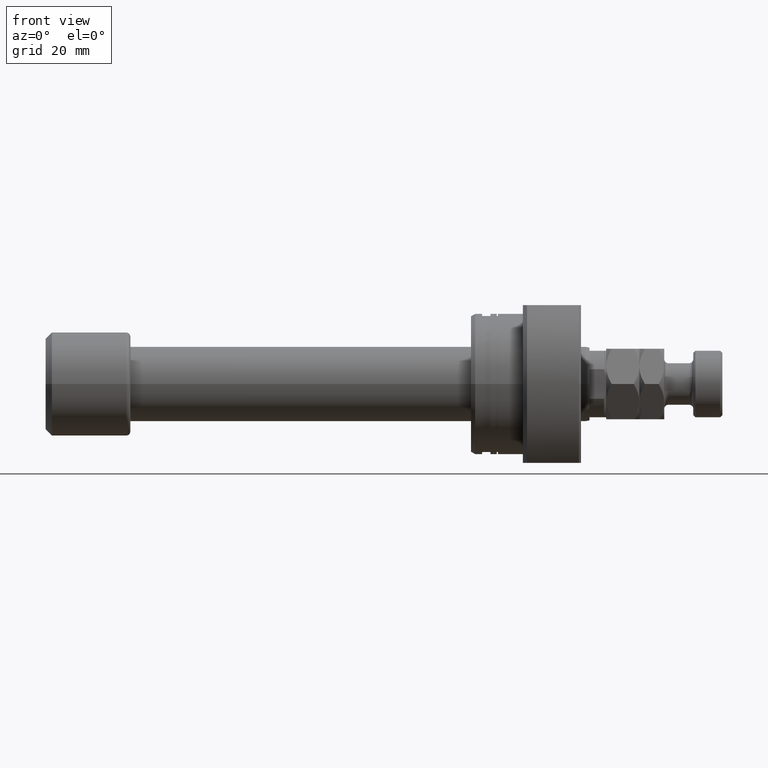
[diagram: clean part render]
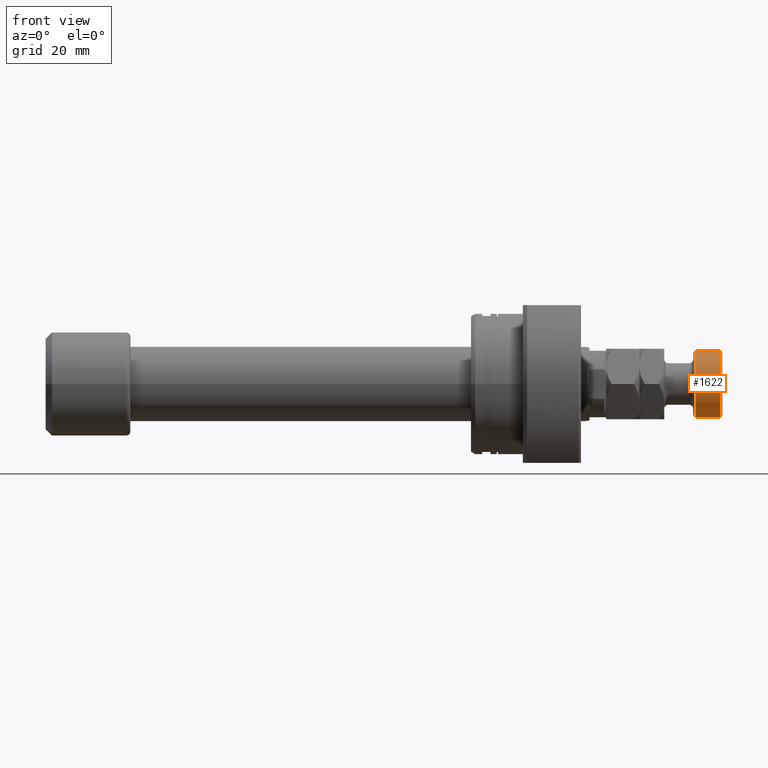
[diagram: same view with one face highlighted and labeled with its STEP entity id]
A machine part, front view. The second image highlights one B-rep face of the part: STEP entity #1622.
In plain terms, the highlighted cylindrical surface (edge-blend (fillet) strip) has radius 8 mm, axis along (-1, -0, 0).
Its self-contained STEP definition (entity closure, byte-faithful):
#122 = VECTOR ( 'NONE', #2805, 1000.000000000000000 ) ;
#160 = CARTESIAN_POINT ( 'NONE',  ( 8.000000000000000000, 9.797174393178825657E-16, 28.00000000000000000 ) ) ;
#174 = CARTESIAN_POINT ( 'NONE',  ( 0.000000000000000000, 0.000000000000000000, 27.50000000000000000 ) ) ;
#206 = LINE ( 'NONE', #160, #122 ) ;
#346 = CARTESIAN_POINT ( 'NONE',  ( 0.000000000000000000, 0.000000000000000000, 28.00000000000000000 ) ) ;
#460 = ORIENTED_EDGE ( 'NONE', *, *, #2314, .F. ) ;
#911 = DIRECTION ( 'NONE',  ( 0.000000000000000000, 0.000000000000000000, -1.000000000000000000 ) ) ;
#1003 = LINE ( 'NONE', #2811, #4559 ) ;
#1132 = CARTESIAN_POINT ( 'NONE',  ( 8.000000000000000000, 9.797174393178825657E-16, 27.50000000000000000 ) ) ;
#1622 = ADVANCED_FACE ( 'NONE', ( #2211 ), #4056, .T. ) ;
#1850 = EDGE_CURVE ( 'NONE', #2722, #4563, #1003, .T. ) ;
#2211 = FACE_OUTER_BOUND ( 'NONE', #3636, .T. ) ;
#2247 = CARTESIAN_POINT ( 'NONE',  ( 8.000000000000000000, 9.797174393178825657E-16, 21.50000000000000711 ) ) ;
#2312 = DIRECTION ( 'NONE',  ( -1.000000000000000000, 0.000000000000000000, 0.000000000000000000 ) ) ;
#2314 = EDGE_CURVE ( 'NONE', #3090, #2404, #206, .T. ) ;
#2399 = EDGE_CURVE ( 'NONE', #4563, #2404, #2491, .T. ) ;
#2404 = VERTEX_POINT ( 'NONE', #2247 ) ;
#2432 = DIRECTION ( 'NONE',  ( 1.000000000000000000, 0.000000000000000000, 0.000000000000000000 ) ) ;
#2491 = CIRCLE ( 'NONE', #4522, 8.000000000000000000 ) ;
#2542 = DIRECTION ( 'NONE',  ( 1.000000000000000000, 0.000000000000000000, 0.000000000000000000 ) ) ;
#2579 = AXIS2_PLACEMENT_3D ( 'NONE', #174, #911, #2432 ) ;
#2722 = VERTEX_POINT ( 'NONE', #3191 ) ;
#2802 = EDGE_CURVE ( 'NONE', #3090, #2722, #4756, .T. ) ;
#2805 = DIRECTION ( 'NONE',  ( -0.000000000000000000, -0.000000000000000000, -1.000000000000000000 ) ) ;
#2811 = CARTESIAN_POINT ( 'NONE',  ( -8.000000000000000000, 0.000000000000000000, 28.00000000000000000 ) ) ;
#2835 = ORIENTED_EDGE ( 'NONE', *, *, #2802, .T. ) ;
#2904 = DIRECTION ( 'NONE',  ( -0.000000000000000000, -0.000000000000000000, 1.000000000000000000 ) ) ;
#2912 = DIRECTION ( 'NONE',  ( -0.000000000000000000, -0.000000000000000000, -1.000000000000000000 ) ) ;
#3090 = VERTEX_POINT ( 'NONE', #1132 ) ;
#3191 = CARTESIAN_POINT ( 'NONE',  ( -8.000000000000000000, 0.000000000000000000, 27.50000000000000000 ) ) ;
#3259 = CARTESIAN_POINT ( 'NONE',  ( -8.000000000000000000, 0.000000000000000000, 21.50000000000000711 ) ) ;
#3416 = ORIENTED_EDGE ( 'NONE', *, *, #1850, .T. ) ;
#3636 = EDGE_LOOP ( 'NONE', ( #460, #2835, #3416, #4517 ) ) ;
#4056 = CYLINDRICAL_SURFACE ( 'NONE', #4637, 8.000000000000000000 ) ;
#4425 = DIRECTION ( 'NONE',  ( -0.000000000000000000, -0.000000000000000000, -1.000000000000000000 ) ) ;
#4466 = CARTESIAN_POINT ( 'NONE',  ( 0.000000000000000000, 0.000000000000000000, 21.50000000000000711 ) ) ;
#4517 = ORIENTED_EDGE ( 'NONE', *, *, #2399, .T. ) ;
#4522 = AXIS2_PLACEMENT_3D ( 'NONE', #4466, #2904, #2542 ) ;
#4559 = VECTOR ( 'NONE', #2912, 1000.000000000000000 ) ;
#4563 = VERTEX_POINT ( 'NONE', #3259 ) ;
#4637 = AXIS2_PLACEMENT_3D ( 'NONE', #346, #4425, #2312 ) ;
#4756 = CIRCLE ( 'NONE', #2579, 8.000000000000000000 ) ;